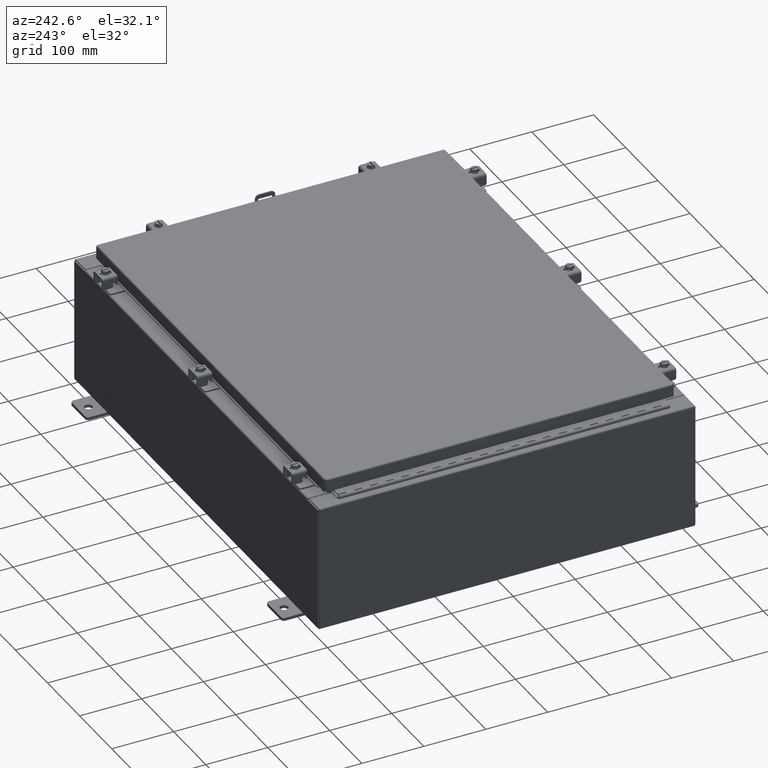
[diagram: clean part render]
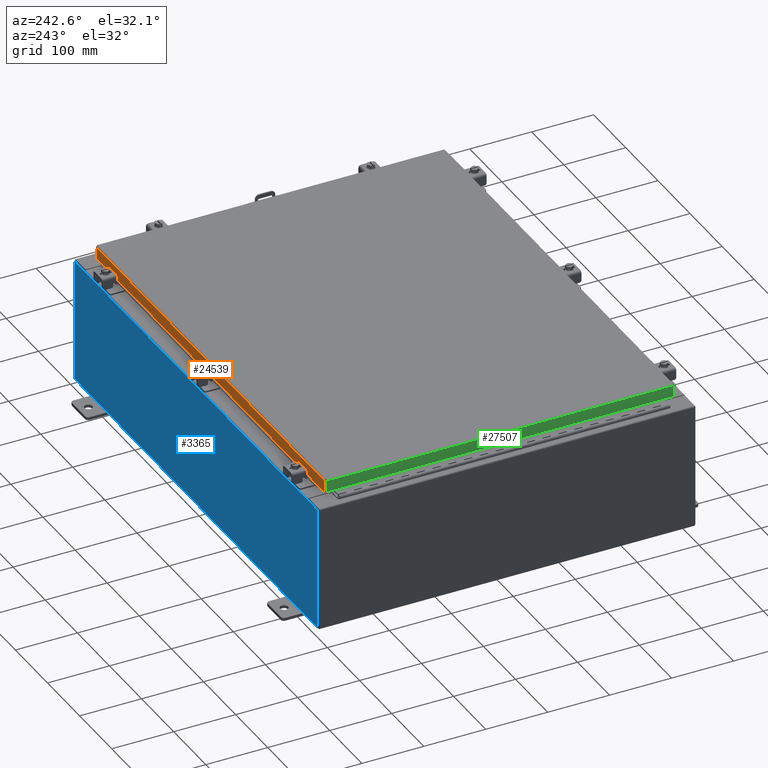
[diagram: same view with three faces highlighted in distinct colors, each labeled with its STEP entity id]
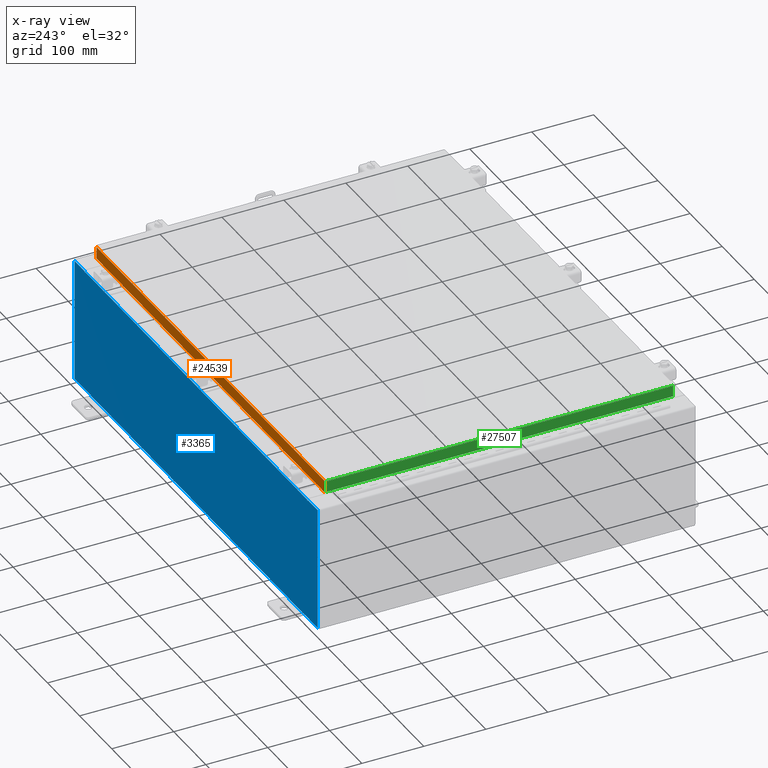
[diagram: x-ray of the same camera — body ghosted, the three highlighted faces saturated]
A machine part, auxiliary view with three faces highlighted in distinct colors.
The next image is the same camera in x-ray (body ghosted, the three faces saturated) — at least one of them is partly hidden behind the body in this view.
Their STEP definitions:

[orange] entity #24539 — the highlighted planar face has unit normal (0, -1, -0).
#43 = LINE ( 'NONE', #10168, #17483 ) ;
#534 = ORIENTED_EDGE ( 'NONE', *, *, #26480, .T. ) ;
#896 = DIRECTION ( 'NONE',  ( 1.000000000000000000, -0.0000000000000000000, 1.261330583805775800E-016 ) ) ;
#1638 = ORIENTED_EDGE ( 'NONE', *, *, #21516, .F. ) ;
#2310 = VECTOR ( 'NONE', #896, 39.37007874015748100 ) ;
#2681 = ORIENTED_EDGE ( 'NONE', *, *, #17902, .F. ) ;
#3912 = VERTEX_POINT ( 'NONE', #5426 ) ;
#4372 = CARTESIAN_POINT ( 'NONE',  ( 13.98915786437627400, 11.09400000000000100, -0.8499999999999996400 ) ) ;
#4391 = VERTEX_POINT ( 'NONE', #4372 ) ;
#5200 = LINE ( 'NONE', #26170, #17808 ) ;
#5243 = VERTEX_POINT ( 'NONE', #16839 ) ;
#5426 = CARTESIAN_POINT ( 'NONE',  ( 13.23915786437627200, 11.09399999999999400, -0.8500000000000056400 ) ) ;
#5590 = CARTESIAN_POINT ( 'NONE',  ( -14.07799999999999800, 11.09400000000000100, -0.8500000000000032000 ) ) ;
#6495 = CARTESIAN_POINT ( 'NONE',  ( -14.07799999999999800, 11.09400000000000100, -0.8500000000000032000 ) ) ;
#6989 = ORIENTED_EDGE ( 'NONE', *, *, #10645, .F. ) ;
#9353 = AXIS2_PLACEMENT_3D ( 'NONE', #15365, #28102, #12940 ) ;
#9674 = CARTESIAN_POINT ( 'NONE',  ( -13.23915786437626400, 11.09399999999999400, -0.8500000000000056400 ) ) ;
#10168 = CARTESIAN_POINT ( 'NONE',  ( -14.07799999999999800, 11.09399999999999900, -0.08770000000000007000 ) ) ;
#10283 = VECTOR ( 'NONE', #14226, 39.37007874015748100 ) ;
#10494 = DIRECTION ( 'NONE',  ( 0.0000000000000000000, 2.818880942772347100E-015, -1.000000000000000000 ) ) ;
#10645 = EDGE_CURVE ( 'NONE', #20038, #3912, #5200, .T. ) ;
#11098 = LINE ( 'NONE', #6495, #10283 ) ;
#11981 = CARTESIAN_POINT ( 'NONE',  ( 13.98915786437627400, 11.09399999999999900, -0.08770000000000224800 ) ) ;
#12940 = DIRECTION ( 'NONE',  ( 0.0000000000000000000, 2.818880942772347100E-015, -1.000000000000000000 ) ) ;
#13140 = CARTESIAN_POINT ( 'NONE',  ( 13.98915786437627100, 11.09399999999999900, 3.153347883512799900E-014 ) ) ;
#14226 = DIRECTION ( 'NONE',  ( 1.000000000000000000, -0.0000000000000000000, 1.261330583805775800E-016 ) ) ;
#15365 = CARTESIAN_POINT ( 'NONE',  ( -3.944516902753746600E-030, 11.09399999999999900, 3.153347883512799900E-014 ) ) ;
#15711 = LINE ( 'NONE', #22474, #27605 ) ;
#15834 = VERTEX_POINT ( 'NONE', #32359 ) ;
#16839 = CARTESIAN_POINT ( 'NONE',  ( -13.98915786437626500, 11.09400000000000100, -0.8500000000000032000 ) ) ;
#17483 = VECTOR ( 'NONE', #17737, 39.37007874015748100 ) ;
#17737 = DIRECTION ( 'NONE',  ( -1.000000000000000000, -5.743565819211262900E-031, 7.762034361881697200E-017 ) ) ;
#17808 = VECTOR ( 'NONE', #28753, 39.37007874015748100 ) ;
#17902 = EDGE_CURVE ( 'NONE', #15834, #5243, #15711, .T. ) ;
#18878 = LINE ( 'NONE', #13140, #32446 ) ;
#20038 = VERTEX_POINT ( 'NONE', #9674 ) ;
#21516 = EDGE_CURVE ( 'NONE', #3912, #4391, #11098, .T. ) ;
#21711 = FACE_OUTER_BOUND ( 'NONE', #27921, .T. ) ;
#21987 = ORIENTED_EDGE ( 'NONE', *, *, #28642, .F. ) ;
#22233 = LINE ( 'NONE', #5590, #2310 ) ;
#22474 = CARTESIAN_POINT ( 'NONE',  ( -13.98915786437626500, 11.09399999999999900, -0.07469999999999978000 ) ) ;
#22582 = DIRECTION ( 'NONE',  ( -0.0000000000000000000, 2.818880942772347100E-015, -1.000000000000000000 ) ) ;
#22922 = PLANE ( 'NONE',  #9353 ) ;
#24539 = ADVANCED_FACE ( 'NONE', ( #21711 ), #22922, .F. ) ;
#26170 = CARTESIAN_POINT ( 'NONE',  ( -13.23915786437626400, 11.09399999999999400, -0.8500000000000056400 ) ) ;
#26480 = EDGE_CURVE ( 'NONE', #30949, #4391, #18878, .T. ) ;
#27605 = VECTOR ( 'NONE', #22582, 39.37007874015748100 ) ;
#27921 = EDGE_LOOP ( 'NONE', ( #31044, #534, #1638, #6989, #21987, #2681 ) ) ;
#28102 = DIRECTION ( 'NONE',  ( 3.555540745226020000E-031, -1.000000000000000000, -2.818880942772347100E-015 ) ) ;
#28642 = EDGE_CURVE ( 'NONE', #5243, #20038, #22233, .T. ) ;
#28753 = DIRECTION ( 'NONE',  ( 1.000000000000000000, -0.0000000000000000000, -0.0000000000000000000 ) ) ;
#30949 = VERTEX_POINT ( 'NONE', #11981 ) ;
#31044 = ORIENTED_EDGE ( 'NONE', *, *, #31924, .F. ) ;
#31924 = EDGE_CURVE ( 'NONE', #30949, #15834, #43, .T. ) ;
#32359 = CARTESIAN_POINT ( 'NONE',  ( -13.98915786437626500, 11.09399999999999900, -0.08770000000000115200 ) ) ;
#32446 = VECTOR ( 'NONE', #10494, 39.37007874015748100 ) ;

[blue] entity #3365 — the highlighted planar face has unit normal (0, -1, 0).
#8 = VECTOR ( 'NONE', #9583, 39.37007874015748100 ) ;
#102 = CARTESIAN_POINT ( 'NONE',  ( -13.63719999999999600, 1.024442997624098700E-016, 3.912299999999999700 ) ) ;
#284 = CARTESIAN_POINT ( 'NONE',  ( -13.67454999999999500, -0.0000000000000000000, 0.0000000000000000000 ) ) ;
#444 = FACE_OUTER_BOUND ( 'NONE', #30842, .T. ) ;
#469 = CARTESIAN_POINT ( 'NONE',  ( 13.63720000000000400, 0.0000000000000000000, 3.912299999999999700 ) ) ;
#472 = LINE ( 'NONE', #11949, #32323 ) ;
#1160 = CARTESIAN_POINT ( 'NONE',  ( -13.63719999999999600, -0.0000000000000000000, 3.874949999999999700 ) ) ;
#2620 = VECTOR ( 'NONE', #29631, 39.37007874015748100 ) ;
#2826 = EDGE_CURVE ( 'NONE', #7282, #31935, #472, .T. ) ;
#2883 = VERTEX_POINT ( 'NONE', #24626 ) ;
#3365 = ADVANCED_FACE ( 'NONE', ( #444 ), #8873, .F. ) ;
#4856 = VECTOR ( 'NONE', #12579, 39.37007874015748100 ) ;
#5248 = EDGE_CURVE ( 'NONE', #6904, #20989, #27783, .T. ) ;
#5554 = VECTOR ( 'NONE', #11438, 39.37007874015748100 ) ;
#5606 = LINE ( 'NONE', #20079, #4856 ) ;
#5622 = VECTOR ( 'NONE', #12574, 39.37007874015748100 ) ;
#5633 = LINE ( 'NONE', #12143, #30236 ) ;
#5680 = EDGE_CURVE ( 'NONE', #7282, #9595, #6317, .T. ) ;
#6317 = LINE ( 'NONE', #24361, #30162 ) ;
#6602 = CIRCLE ( 'NONE', #18391, 0.01867499999999949400 ) ;
#6904 = VERTEX_POINT ( 'NONE', #29012 ) ;
#7282 = VERTEX_POINT ( 'NONE', #102 ) ;
#7973 = EDGE_CURVE ( 'NONE', #20989, #16086, #6602, .T. ) ;
#8590 = CARTESIAN_POINT ( 'NONE',  ( -14.92529999999999800, 0.0000000000000000000, 3.925299999999999600 ) ) ;
#8658 = VERTEX_POINT ( 'NONE', #14369 ) ;
#8808 = ORIENTED_EDGE ( 'NONE', *, *, #29128, .T. ) ;
#8873 = PLANE ( 'NONE',  #9178 ) ;
#9178 = AXIS2_PLACEMENT_3D ( 'NONE', #13944, #26636, #11459 ) ;
#9361 = DIRECTION ( 'NONE',  ( 1.000000000000000000, 0.0000000000000000000, 0.0000000000000000000 ) ) ;
#9583 = DIRECTION ( 'NONE',  ( 1.000000000000000000, 0.0000000000000000000, 0.0000000000000000000 ) ) ;
#9595 = VERTEX_POINT ( 'NONE', #1160 ) ;
#9887 = ORIENTED_EDGE ( 'NONE', *, *, #2826, .T. ) ;
#9935 = CARTESIAN_POINT ( 'NONE',  ( 13.65587500000000200, 0.0000000000000000000, 3.874949999999999700 ) ) ;
#10748 = EDGE_CURVE ( 'NONE', #16086, #31935, #20588, .T. ) ;
#11438 = DIRECTION ( 'NONE',  ( 0.0000000000000000000, 0.0000000000000000000, 1.000000000000000000 ) ) ;
#11459 = DIRECTION ( 'NONE',  ( 0.0000000000000000000, -0.0000000000000000000, -1.000000000000000000 ) ) ;
#11884 = CARTESIAN_POINT ( 'NONE',  ( 13.67454999999983300, -0.0000000000000000000, -5.935537951421816200E-013 ) ) ;
#11949 = CARTESIAN_POINT ( 'NONE',  ( -13.63719999999999800, 1.024442997624098700E-016, 3.912299999999999700 ) ) ;
#12076 = CARTESIAN_POINT ( 'NONE',  ( -14.92529999999999800, 0.0000000000000000000, 3.925299999999999600 ) ) ;
#12143 = CARTESIAN_POINT ( 'NONE',  ( -14.92529999999999800, 0.0000000000000000000, 3.925299999999999600 ) ) ;
#12207 = ORIENTED_EDGE ( 'NONE', *, *, #7973, .F. ) ;
#12563 = DIRECTION ( 'NONE',  ( 0.0000000000000000000, 0.0000000000000000000, -1.000000000000000000 ) ) ;
#12574 = DIRECTION ( 'NONE',  ( 0.0000000000000000000, 0.0000000000000000000, 1.000000000000000000 ) ) ;
#12579 = DIRECTION ( 'NONE',  ( 0.0000000000000000000, 0.0000000000000000000, -1.000000000000000000 ) ) ;
#12761 = DIRECTION ( 'NONE',  ( -1.000000000000000000, -0.0000000000000000000, -0.0000000000000000000 ) ) ;
#13064 = ORIENTED_EDGE ( 'NONE', *, *, #10748, .F. ) ;
#13144 = LINE ( 'NONE', #12076, #8 ) ;
#13373 = CARTESIAN_POINT ( 'NONE',  ( -13.65587499999999600, 0.0000000000000000000, 3.874949999999999700 ) ) ;
#13686 = AXIS2_PLACEMENT_3D ( 'NONE', #13373, #31107, #15880 ) ;
#13944 = CARTESIAN_POINT ( 'NONE',  ( 0.0000000000000000000, 0.0000000000000000000, 0.0000000000000000000 ) ) ;
#14245 = CARTESIAN_POINT ( 'NONE',  ( -14.92529999999999800, 0.0000000000000000000, -3.925299999999999600 ) ) ;
#14369 = CARTESIAN_POINT ( 'NONE',  ( -13.67454999999999500, 0.0000000000000000000, 3.925299999999999600 ) ) ;
#14857 = EDGE_CURVE ( 'NONE', #6904, #30454, #18360, .T. ) ;
#15582 = CARTESIAN_POINT ( 'NONE',  ( -13.67454999999999500, 0.0000000000000000000, 3.874949999999999700 ) ) ;
#15630 = DIRECTION ( 'NONE',  ( 1.000000000000000000, 0.0000000000000000000, 0.0000000000000000000 ) ) ;
#15880 = DIRECTION ( 'NONE',  ( 0.0000000000000000000, 0.0000000000000000000, -1.000000000000000000 ) ) ;
#16086 = VERTEX_POINT ( 'NONE', #23019 ) ;
#16356 = ORIENTED_EDGE ( 'NONE', *, *, #28672, .F. ) ;
#17568 = VECTOR ( 'NONE', #15630, 39.37007874015748100 ) ;
#18360 = LINE ( 'NONE', #28260, #17568 ) ;
#18391 = AXIS2_PLACEMENT_3D ( 'NONE', #9935, #27734, #12563 ) ;
#19083 = LINE ( 'NONE', #284, #5622 ) ;
#19208 = VERTEX_POINT ( 'NONE', #14245 ) ;
#20079 = CARTESIAN_POINT ( 'NONE',  ( 14.92530000000000200, 0.0000000000000000000, 3.925299999999999600 ) ) ;
#20260 = CARTESIAN_POINT ( 'NONE',  ( -14.92529999999999800, 0.0000000000000000000, -3.925299999999999600 ) ) ;
#20588 = LINE ( 'NONE', #26720, #5554 ) ;
#20619 = EDGE_CURVE ( 'NONE', #19208, #32537, #5633, .T. ) ;
#20732 = ORIENTED_EDGE ( 'NONE', *, *, #14857, .T. ) ;
#20989 = VERTEX_POINT ( 'NONE', #25932 ) ;
#21092 = VECTOR ( 'NONE', #12761, 39.37007874015748100 ) ;
#21241 = ORIENTED_EDGE ( 'NONE', *, *, #5680, .F. ) ;
#21691 = EDGE_CURVE ( 'NONE', #32537, #8658, #13144, .T. ) ;
#21925 = DIRECTION ( 'NONE',  ( 0.0000000000000000000, 0.0000000000000000000, -1.000000000000000000 ) ) ;
#21941 = CARTESIAN_POINT ( 'NONE',  ( 14.92530000000000200, 0.0000000000000000000, 3.925299999999999600 ) ) ;
#22173 = DIRECTION ( 'NONE',  ( -0.0000000000000000000, -0.0000000000000000000, 1.000000000000000000 ) ) ;
#22680 = ORIENTED_EDGE ( 'NONE', *, *, #31103, .T. ) ;
#23019 = CARTESIAN_POINT ( 'NONE',  ( 13.63720000000000400, 0.0000000000000000000, 3.874949999999999700 ) ) ;
#23816 = CIRCLE ( 'NONE', #13686, 0.01867499999999949400 ) ;
#24361 = CARTESIAN_POINT ( 'NONE',  ( -13.63719999999999600, -0.0000000000000000000, 0.0000000000000000000 ) ) ;
#24626 = CARTESIAN_POINT ( 'NONE',  ( 14.92530000000000200, 0.0000000000000000000, -3.925299999999999600 ) ) ;
#25932 = CARTESIAN_POINT ( 'NONE',  ( 13.67455000000000200, 0.0000000000000000000, 3.874949999999999700 ) ) ;
#26636 = DIRECTION ( 'NONE',  ( 0.0000000000000000000, -1.000000000000000000, 0.0000000000000000000 ) ) ;
#26720 = CARTESIAN_POINT ( 'NONE',  ( 13.63720000000000400, 0.0000000000000000000, 0.0000000000000000000 ) ) ;
#27286 = ORIENTED_EDGE ( 'NONE', *, *, #21691, .T. ) ;
#27734 = DIRECTION ( 'NONE',  ( -0.0000000000000000000, 1.000000000000000000, -0.0000000000000000000 ) ) ;
#27783 = LINE ( 'NONE', #11884, #2620 ) ;
#27877 = LINE ( 'NONE', #20260, #21092 ) ;
#27907 = ORIENTED_EDGE ( 'NONE', *, *, #20619, .T. ) ;
#28260 = CARTESIAN_POINT ( 'NONE',  ( -14.92529999999999800, 0.0000000000000000000, 3.925299999999999600 ) ) ;
#28598 = ORIENTED_EDGE ( 'NONE', *, *, #31895, .F. ) ;
#28672 = EDGE_CURVE ( 'NONE', #9595, #31476, #23816, .T. ) ;
#29012 = CARTESIAN_POINT ( 'NONE',  ( 13.67455000000000400, 0.0000000000000000000, 3.925299999999999600 ) ) ;
#29128 = EDGE_CURVE ( 'NONE', #30454, #2883, #5606, .T. ) ;
#29631 = DIRECTION ( 'NONE',  ( -4.340572780400004900E-014, 0.0000000000000000000, -1.000000000000000000 ) ) ;
#30162 = VECTOR ( 'NONE', #21925, 39.37007874015748100 ) ;
#30236 = VECTOR ( 'NONE', #22173, 39.37007874015748100 ) ;
#30454 = VERTEX_POINT ( 'NONE', #21941 ) ;
#30842 = EDGE_LOOP ( 'NONE', ( #28598, #16356, #21241, #9887, #13064, #12207, #31348, #20732, #8808, #22680, #27907, #27286 ) ) ;
#31103 = EDGE_CURVE ( 'NONE', #2883, #19208, #27877, .T. ) ;
#31107 = DIRECTION ( 'NONE',  ( -0.0000000000000000000, 1.000000000000000000, -0.0000000000000000000 ) ) ;
#31348 = ORIENTED_EDGE ( 'NONE', *, *, #5248, .F. ) ;
#31476 = VERTEX_POINT ( 'NONE', #15582 ) ;
#31895 = EDGE_CURVE ( 'NONE', #31476, #8658, #19083, .T. ) ;
#31935 = VERTEX_POINT ( 'NONE', #469 ) ;
#32323 = VECTOR ( 'NONE', #9361, 39.37007874015748100 ) ;
#32537 = VERTEX_POINT ( 'NONE', #8590 ) ;

[green] entity #27507 — the highlighted planar face has unit normal (1, 0, -0).
#1394 = AXIS2_PLACEMENT_3D ( 'NONE', #20167, #5047, #22650 ) ;
#2277 = VECTOR ( 'NONE', #15289, 39.37007874015748100 ) ;
#2615 = LINE ( 'NONE', #19839, #15100 ) ;
#4689 = VECTOR ( 'NONE', #26679, 39.37007874015748100 ) ;
#5047 = DIRECTION ( 'NONE',  ( 1.000000000000000000, 3.735695558659274400E-031, -3.034122441942816500E-015 ) ) ;
#5092 = VERTEX_POINT ( 'NONE', #13684 ) ;
#5127 = CARTESIAN_POINT ( 'NONE',  ( -14.07799999999999800, -11.09400000000000100, -0.08770000000000004200 ) ) ;
#6385 = CARTESIAN_POINT ( 'NONE',  ( -14.07799999999999800, 11.00515786437626700, 1.198237960226675300E-013 ) ) ;
#6604 = ORIENTED_EDGE ( 'NONE', *, *, #9412, .F. ) ;
#7470 = DIRECTION ( 'NONE',  ( -3.034122441942816500E-015, 6.982962677686265900E-015, -1.000000000000000000 ) ) ;
#8727 = LINE ( 'NONE', #5127, #2277 ) ;
#9412 = EDGE_CURVE ( 'NONE', #5092, #20665, #15273, .T. ) ;
#9869 = EDGE_CURVE ( 'NONE', #15559, #5092, #8727, .T. ) ;
#12475 = ORIENTED_EDGE ( 'NONE', *, *, #9869, .F. ) ;
#13129 = EDGE_CURVE ( 'NONE', #15559, #16835, #31627, .T. ) ;
#13684 = CARTESIAN_POINT ( 'NONE',  ( -14.07799999999999800, -11.00515786437626900, -0.08770000000000007000 ) ) ;
#15100 = VECTOR ( 'NONE', #27386, 39.37007874015748100 ) ;
#15273 = LINE ( 'NONE', #17694, #27945 ) ;
#15289 = DIRECTION ( 'NONE',  ( 3.735695558659274900E-031, -1.000000000000000000, -1.101212895818006000E-045 ) ) ;
#15559 = VERTEX_POINT ( 'NONE', #31455 ) ;
#16835 = VERTEX_POINT ( 'NONE', #28262 ) ;
#17694 = CARTESIAN_POINT ( 'NONE',  ( -14.07799999999999800, -11.00515786437627100, -0.07469999999999976700 ) ) ;
#18796 = ORIENTED_EDGE ( 'NONE', *, *, #29644, .F. ) ;
#19839 = CARTESIAN_POINT ( 'NONE',  ( -14.07799999999999900, -11.09400000000000100, -0.7949999999999997100 ) ) ;
#20167 = CARTESIAN_POINT ( 'NONE',  ( -14.07799999999999800, -5.259112207480525900E-030, 4.297518939368254200E-014 ) ) ;
#20665 = VERTEX_POINT ( 'NONE', #32564 ) ;
#20671 = ORIENTED_EDGE ( 'NONE', *, *, #13129, .T. ) ;
#22550 = EDGE_LOOP ( 'NONE', ( #12475, #20671, #18796, #6604 ) ) ;
#22650 = DIRECTION ( 'NONE',  ( -3.034122441942816500E-015, 0.0000000000000000000, -1.000000000000000000 ) ) ;
#26679 = DIRECTION ( 'NONE',  ( -3.034122441942816500E-015, 6.982962677686265900E-015, -1.000000000000000000 ) ) ;
#27386 = DIRECTION ( 'NONE',  ( 4.379057701015054300E-047, 1.000000000000000000, 1.231227687788112300E-016 ) ) ;
#27507 = ADVANCED_FACE ( 'NONE', ( #31147 ), #30294, .F. ) ;
#27945 = VECTOR ( 'NONE', #7470, 39.37007874015748100 ) ;
#28262 = CARTESIAN_POINT ( 'NONE',  ( -14.07799999999999900, 11.00515786437627100, -0.7949999999999969300 ) ) ;
#29644 = EDGE_CURVE ( 'NONE', #20665, #16835, #2615, .T. ) ;
#30294 = PLANE ( 'NONE',  #1394 ) ;
#31147 = FACE_OUTER_BOUND ( 'NONE', #22550, .T. ) ;
#31455 = CARTESIAN_POINT ( 'NONE',  ( -14.07799999999999800, 11.00515786437626900, -0.08770000000000004200 ) ) ;
#31627 = LINE ( 'NONE', #6385, #4689 ) ;
#32564 = CARTESIAN_POINT ( 'NONE',  ( -14.07799999999999900, -11.00515786437626700, -0.7949999999999996000 ) ) ;